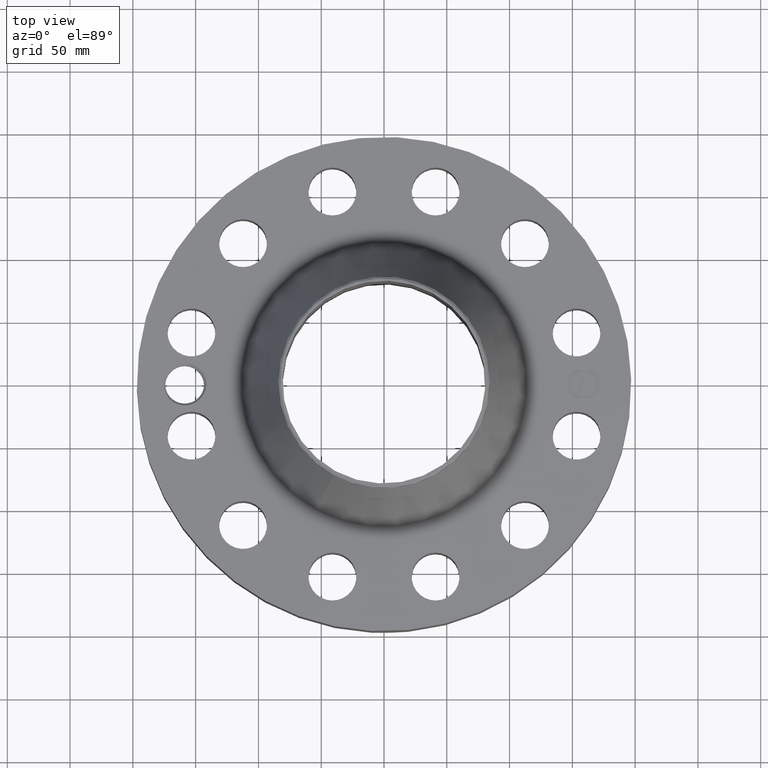
[diagram: clean part render]
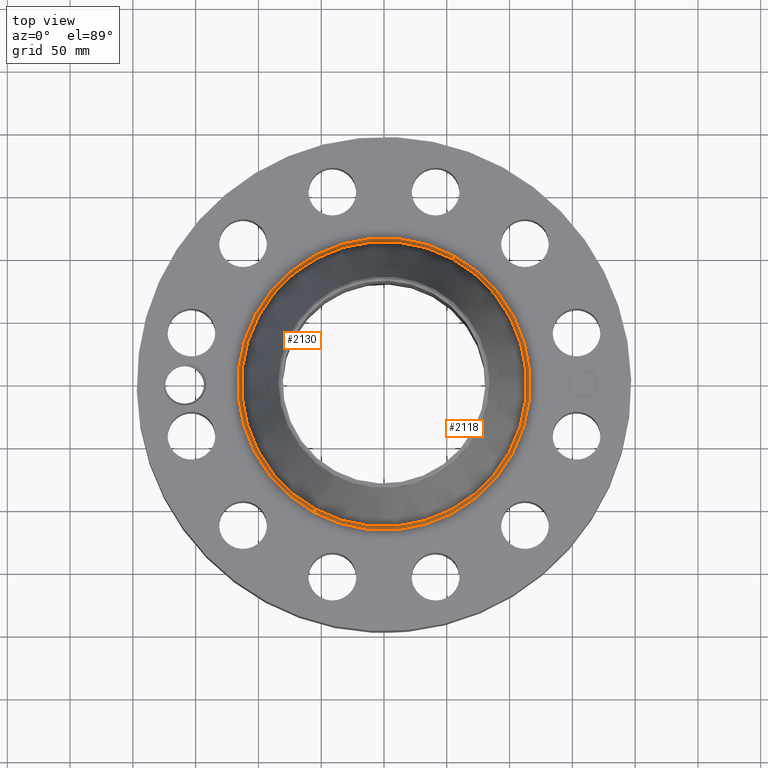
[diagram: same view with one multi-face feature highlighted, each face labeled with its STEP entity id]
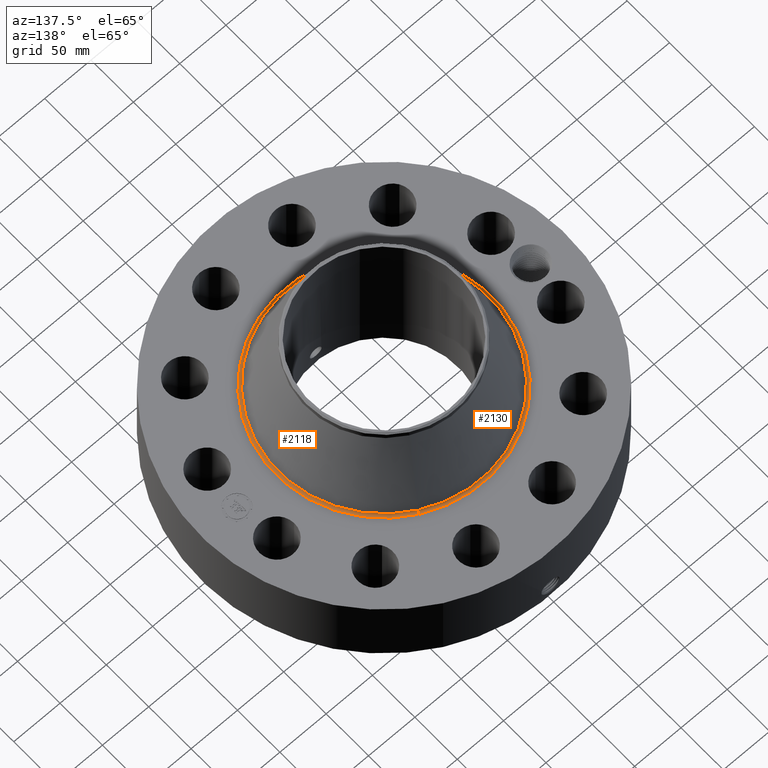
[diagram: same view with one multi-face feature highlighted, each face labeled with its STEP entity id]
A machine part, top view. The highlighted faces form ONE feature: a constant-radius fillet chain: 2 tangent blend faces with common blend radius 3.048 mm. The faces share edges in the B-rep.
A second angle (auxiliary view) of the same feature is appended — it is thin or edge-on in the first view.
Their STEP definitions:
[1] entity #2118 (Torus):
#651=AXIS2_PLACEMENT_3D('Circle Axis2P3D',#649,#650,$) ;
#2091=AXIS2_PLACEMENT_3D('Torus Axis2P3D',#2088,#2089,#2090) ;
#2095=AXIS2_PLACEMENT_3D('Circle Axis2P3D',#2093,#2094,$) ;
#2102=AXIS2_PLACEMENT_3D('Circle Axis2P3D',#2100,#2101,$) ;
#2109=AXIS2_PLACEMENT_3D('Circle Axis2P3D',#2107,#2108,$) ;
#644=CARTESIAN_POINT('Vertex',(-2.1975436546,-4.02257667767,3.50000000001)) ;
#646=CARTESIAN_POINT('Vertex',(2.1975436546,4.02257667767,3.50000000001)) ;
#649=CARTESIAN_POINT('Axis2P3D Location',(0.,0.,3.50000000001)) ;
#2088=CARTESIAN_POINT('Axis2P3D Location',(0.,0.,3.62000000001)) ;
#2093=CARTESIAN_POINT('Axis2P3D Location',(2.1975436546,4.02257667767,3.62000000001)) ;
#2097=CARTESIAN_POINT('Vertex',(2.14355370533,3.92374873844,3.57854974302)) ;
#2100=CARTESIAN_POINT('Axis2P3D Location',(0.,0.,3.57854974302)) ;
#2104=CARTESIAN_POINT('Vertex',(-2.14355370533,-3.92374873844,3.57854974302)) ;
#2107=CARTESIAN_POINT('Axis2P3D Location',(-2.1975436546,-4.02257667767,3.62000000001)) ;
#650=DIRECTION('Axis2P3D Direction',(0.,0.,-0.0393700787402)) ;
#2089=DIRECTION('Axis2P3D Direction',(0.,0.,-0.0393700787402)) ;
#2090=DIRECTION('Axis2P3D XDirection',(-0.0188750212049,-0.0345504945626,0.)) ;
#2094=DIRECTION('Axis2P3D Direction',(-0.0345504945626,0.0188750212049,0.)) ;
#2101=DIRECTION('Axis2P3D Direction',(0.,0.,-0.0393700787402)) ;
#2108=DIRECTION('Axis2P3D Direction',(0.0345504945626,-0.0188750212049,0.)) ;
#2113=ORIENTED_EDGE('',*,*,#653,.F.) ;
#2114=ORIENTED_EDGE('',*,*,#2099,.T.) ;
#2115=ORIENTED_EDGE('',*,*,#2106,.T.) ;
#2116=ORIENTED_EDGE('',*,*,#2111,.F.) ;
#2118=ADVANCED_FACE('PartBody',(#2117),#2092,.F.) ;
#652=CIRCLE('generated circle',#651,4.5837016964) ;
#2096=CIRCLE('generated circle',#2095,0.12) ;
#2103=CIRCLE('generated circle',#2102,4.4710878598) ;
#2110=CIRCLE('generated circle',#2109,0.12) ;
#2092=TOROIDAL_SURFACE('homeo Torus',#2091,4.5837016964,0.12) ;
#653=EDGE_CURVE('',#647,#645,#652,.T.) ;
#2099=EDGE_CURVE('',#647,#2098,#2096,.T.) ;
#2106=EDGE_CURVE('',#2098,#2105,#2103,.T.) ;
#2111=EDGE_CURVE('',#645,#2105,#2110,.T.) ;
#2112=EDGE_LOOP('',(#2113,#2114,#2115,#2116)) ;
#2117=FACE_OUTER_BOUND('',#2112,.T.) ;
#645=VERTEX_POINT('',#644) ;
#647=VERTEX_POINT('',#646) ;
#2098=VERTEX_POINT('',#2097) ;
#2105=VERTEX_POINT('',#2104) ;
[2] entity #2130 (Torus):
#642=AXIS2_PLACEMENT_3D('Circle Axis2P3D',#640,#641,$) ;
#2091=AXIS2_PLACEMENT_3D('Torus Axis2P3D',#2088,#2089,#2090) ;
#2095=AXIS2_PLACEMENT_3D('Circle Axis2P3D',#2093,#2094,$) ;
#2109=AXIS2_PLACEMENT_3D('Circle Axis2P3D',#2107,#2108,$) ;
#2121=AXIS2_PLACEMENT_3D('Circle Axis2P3D',#2119,#2120,$) ;
#640=CARTESIAN_POINT('Axis2P3D Location',(0.,0.,3.50000000001)) ;
#644=CARTESIAN_POINT('Vertex',(-2.1975436546,-4.02257667767,3.50000000001)) ;
#646=CARTESIAN_POINT('Vertex',(2.1975436546,4.02257667767,3.50000000001)) ;
#2088=CARTESIAN_POINT('Axis2P3D Location',(0.,0.,3.62000000001)) ;
#2093=CARTESIAN_POINT('Axis2P3D Location',(2.1975436546,4.02257667767,3.62000000001)) ;
#2097=CARTESIAN_POINT('Vertex',(2.14355370533,3.92374873844,3.57854974302)) ;
#2104=CARTESIAN_POINT('Vertex',(-2.14355370533,-3.92374873844,3.57854974302)) ;
#2107=CARTESIAN_POINT('Axis2P3D Location',(-2.1975436546,-4.02257667767,3.62000000001)) ;
#2119=CARTESIAN_POINT('Axis2P3D Location',(0.,0.,3.57854974302)) ;
#641=DIRECTION('Axis2P3D Direction',(0.,0.,-0.0393700787402)) ;
#2089=DIRECTION('Axis2P3D Direction',(0.,0.,-0.0393700787402)) ;
#2090=DIRECTION('Axis2P3D XDirection',(-0.0188750212049,-0.0345504945626,0.)) ;
#2094=DIRECTION('Axis2P3D Direction',(-0.0345504945626,0.0188750212049,0.)) ;
#2108=DIRECTION('Axis2P3D Direction',(0.0345504945626,-0.0188750212049,0.)) ;
#2120=DIRECTION('Axis2P3D Direction',(0.,0.,-0.0393700787402)) ;
#2125=ORIENTED_EDGE('',*,*,#648,.F.) ;
#2126=ORIENTED_EDGE('',*,*,#2111,.T.) ;
#2127=ORIENTED_EDGE('',*,*,#2123,.T.) ;
#2128=ORIENTED_EDGE('',*,*,#2099,.F.) ;
#2130=ADVANCED_FACE('PartBody',(#2129),#2092,.F.) ;
#643=CIRCLE('generated circle',#642,4.5837016964) ;
#2096=CIRCLE('generated circle',#2095,0.12) ;
#2110=CIRCLE('generated circle',#2109,0.12) ;
#2122=CIRCLE('generated circle',#2121,4.4710878598) ;
#2092=TOROIDAL_SURFACE('homeo Torus',#2091,4.5837016964,0.12) ;
#648=EDGE_CURVE('',#645,#647,#643,.T.) ;
#2099=EDGE_CURVE('',#647,#2098,#2096,.T.) ;
#2111=EDGE_CURVE('',#645,#2105,#2110,.T.) ;
#2123=EDGE_CURVE('',#2105,#2098,#2122,.T.) ;
#2124=EDGE_LOOP('',(#2125,#2126,#2127,#2128)) ;
#2129=FACE_OUTER_BOUND('',#2124,.T.) ;
#645=VERTEX_POINT('',#644) ;
#647=VERTEX_POINT('',#646) ;
#2098=VERTEX_POINT('',#2097) ;
#2105=VERTEX_POINT('',#2104) ;